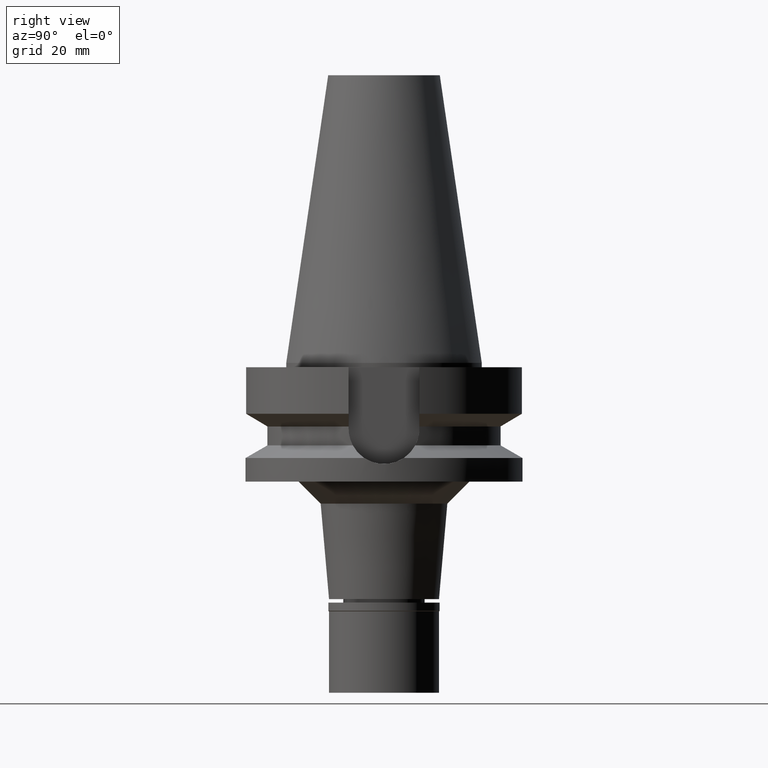
[diagram: clean part render]
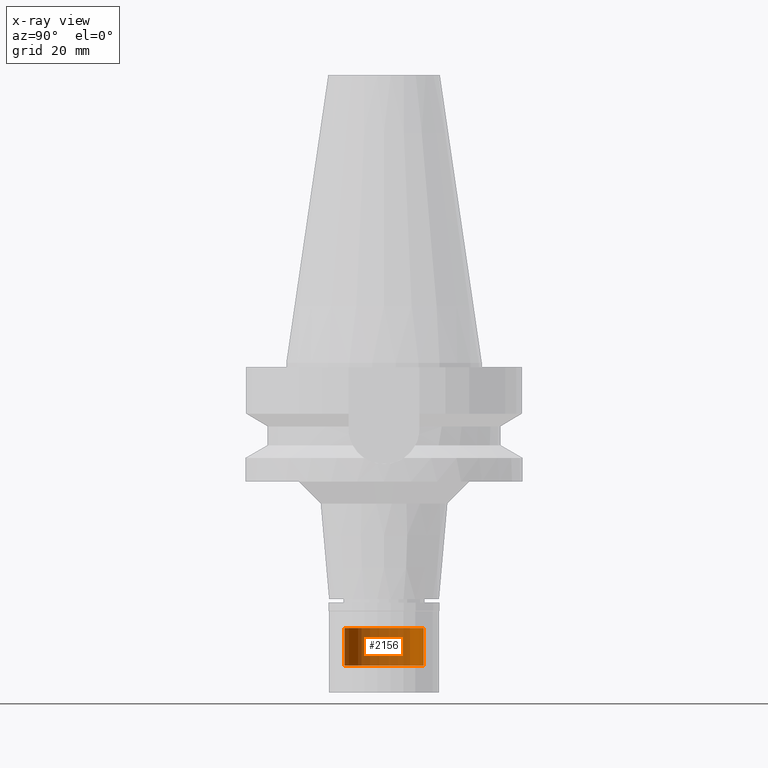
[diagram: x-ray — body ghosted, one internal face saturated and labeled with its STEP entity id]
A machine part, right view, then the same camera in x-ray: the body is ghosted and one INTERNAL B-rep face — a face not visible from any outside direction — is saturated and labeled: STEP entity #2156.
In plain terms, the highlighted cylindrical surface (partial cylindrical patch) has radius 9 mm, axis along (0, 0, -1).
Its self-contained STEP definition (entity closure, byte-faithful):
#127 = ORIENTED_EDGE ( 'NONE', *, *, #155, .T. ) ;
#155 = EDGE_CURVE ( 'NONE', #2316, #1608, #1637, .T. ) ;
#186 = DIRECTION ( 'NONE',  ( 0.0000000000000000000, -1.000000000000000000, 0.0000000000000000000 ) ) ;
#498 = LINE ( 'NONE', #730, #1936 ) ;
#591 = CIRCLE ( 'NONE', #1092, 9.000000000000000000 ) ;
#730 = CARTESIAN_POINT ( 'NONE',  ( 0.0000000000000000000, -9.000000000000000000, -60.29999999999999716 ) ) ;
#859 = CARTESIAN_POINT ( 'NONE',  ( 0.0000000000000000000, -9.000000000000000000, -60.29999999999999716 ) ) ;
#967 = ORIENTED_EDGE ( 'NONE', *, *, #2654, .T. ) ;
#1092 = AXIS2_PLACEMENT_3D ( 'NONE', #2341, #3075, #186 ) ;
#1106 = DIRECTION ( 'NONE',  ( 0.0000000000000000000, 0.0000000000000000000, -1.000000000000000000 ) ) ;
#1139 = DIRECTION ( 'NONE',  ( 0.0000000000000000000, -1.000000000000000000, 0.0000000000000000000 ) ) ;
#1146 = ORIENTED_EDGE ( 'NONE', *, *, #2854, .F. ) ;
#1201 = DIRECTION ( 'NONE',  ( 0.0000000000000000000, 0.0000000000000000000, -1.000000000000000000 ) ) ;
#1346 = CARTESIAN_POINT ( 'NONE',  ( 0.0000000000000000000, 2.107739606012999995E-14, -68.79999999999999716 ) ) ;
#1511 = EDGE_LOOP ( 'NONE', ( #1566, #1146, #967, #127 ) ) ;
#1566 = ORIENTED_EDGE ( 'NONE', *, *, #2204, .T. ) ;
#1608 = VERTEX_POINT ( 'NONE', #1977 ) ;
#1637 = LINE ( 'NONE', #2119, #2439 ) ;
#1729 = AXIS2_PLACEMENT_3D ( 'NONE', #1346, #2318, #2058 ) ;
#1756 = VERTEX_POINT ( 'NONE', #859 ) ;
#1874 = DIRECTION ( 'NONE',  ( 0.0000000000000000000, 0.0000000000000000000, -1.000000000000000000 ) ) ;
#1904 = CARTESIAN_POINT ( 'NONE',  ( 0.0000000000000000000, -9.000000000000000000, -68.79999999999999716 ) ) ;
#1936 = VECTOR ( 'NONE', #1874, 1000.000000000000000 ) ;
#1977 = CARTESIAN_POINT ( 'NONE',  ( 0.0000000000000000000, 9.000000000000000000, -68.79999999999999716 ) ) ;
#2058 = DIRECTION ( 'NONE',  ( 0.0000000000000000000, 1.000000000000000000, 0.0000000000000000000 ) ) ;
#2119 = CARTESIAN_POINT ( 'NONE',  ( 0.0000000000000000000, 9.000000000000000000, -60.29999999999999716 ) ) ;
#2156 = ADVANCED_FACE ( 'NONE', ( #2347 ), #2845, .T. ) ;
#2204 = EDGE_CURVE ( 'NONE', #1608, #2937, #2502, .T. ) ;
#2316 = VERTEX_POINT ( 'NONE', #2440 ) ;
#2318 = DIRECTION ( 'NONE',  ( 0.0000000000000000000, 0.0000000000000000000, 1.000000000000000000 ) ) ;
#2341 = CARTESIAN_POINT ( 'NONE',  ( 0.0000000000000000000, 2.107739606012999995E-14, -60.29999999999999716 ) ) ;
#2347 = FACE_OUTER_BOUND ( 'NONE', #1511, .T. ) ;
#2439 = VECTOR ( 'NONE', #1201, 1000.000000000000000 ) ;
#2440 = CARTESIAN_POINT ( 'NONE',  ( 0.0000000000000000000, 9.000000000000000000, -60.29999999999999716 ) ) ;
#2502 = CIRCLE ( 'NONE', #1729, 9.000000000000000000 ) ;
#2654 = EDGE_CURVE ( 'NONE', #1756, #2316, #591, .T. ) ;
#2709 = AXIS2_PLACEMENT_3D ( 'NONE', #2837, #1106, #1139 ) ;
#2837 = CARTESIAN_POINT ( 'NONE',  ( 0.0000000000000000000, 2.107739606012999995E-14, 72.10999999999999943 ) ) ;
#2845 = CYLINDRICAL_SURFACE ( 'NONE', #2709, 9.000000000000000000 ) ;
#2854 = EDGE_CURVE ( 'NONE', #1756, #2937, #498, .T. ) ;
#2937 = VERTEX_POINT ( 'NONE', #1904 ) ;
#3075 = DIRECTION ( 'NONE',  ( 0.0000000000000000000, 0.0000000000000000000, -1.000000000000000000 ) ) ;